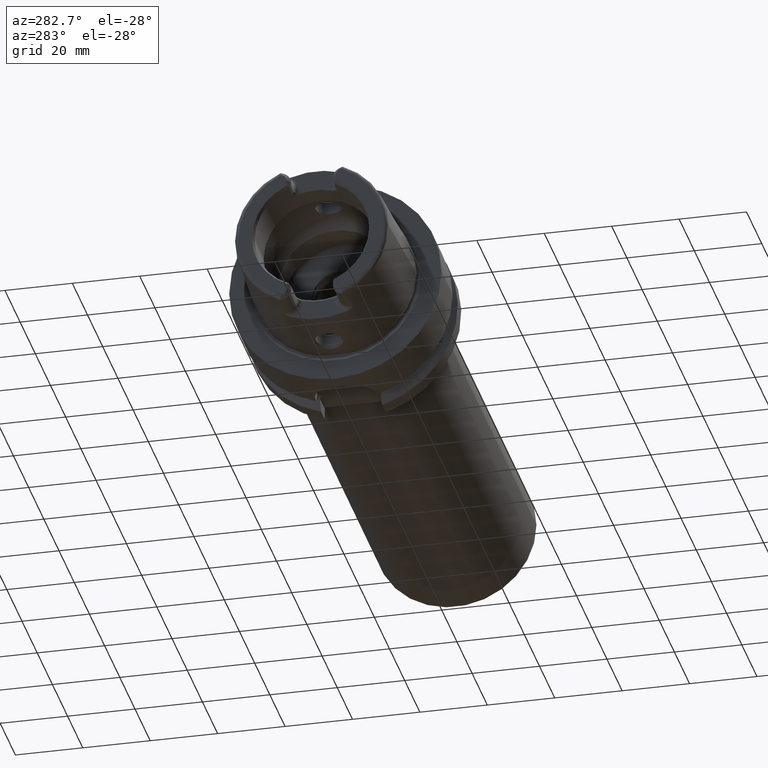
[diagram: clean part render]
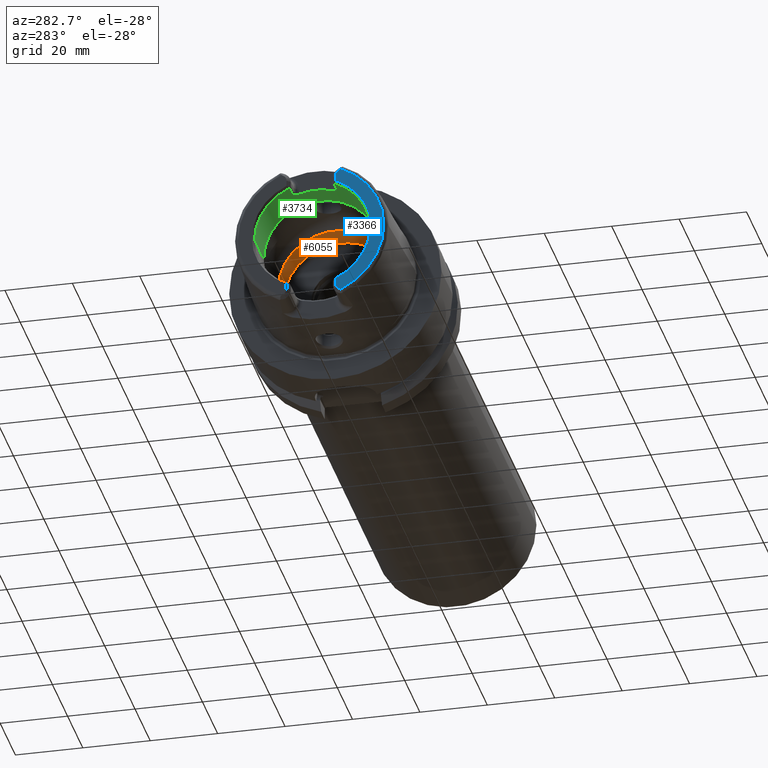
[diagram: same view with three faces highlighted in distinct colors, each labeled with its STEP entity id]
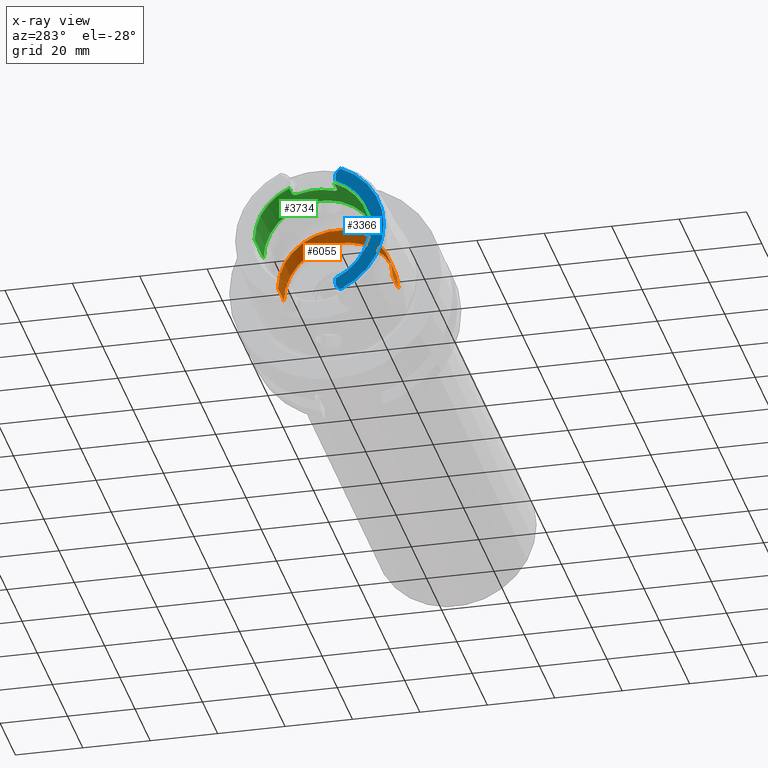
[diagram: x-ray of the same camera — body ghosted, the three highlighted faces saturated]
A machine part, auxiliary view with three faces highlighted in distinct colors.
The next image is the same camera in x-ray (body ghosted, the three faces saturated) — at least one of them is partly hidden behind the body in this view.
Their STEP definitions:

[orange] entity #6055 — the highlighted cylindrical surface (partial cylindrical patch) has radius 17 mm, axis along (1, 0, 0).
#2289=CARTESIAN_POINT('',(-1.E-1,0.E0,0.E0));
#2290=DIRECTION('',(1.E0,0.E0,0.E0));
#2291=DIRECTION('',(0.E0,1.E0,0.E0));
#2292=AXIS2_PLACEMENT_3D('',#2289,#2290,#2291);
#2437=DIRECTION('',(-1.E0,0.E0,0.E0));
#2438=VECTOR('',#2437,7.770843802411E0);
#2439=CARTESIAN_POINT('',(7.670843802411E0,1.7E1,0.E0));
#2440=LINE('',#2439,#2438);
#2446=DIRECTION('',(-1.E0,0.E0,0.E0));
#2447=VECTOR('',#2446,7.770843802411E0);
#2448=CARTESIAN_POINT('',(7.670843802411E0,-1.7E1,0.E0));
#2449=LINE('',#2448,#2447);
#2450=CARTESIAN_POINT('',(7.670843802411E0,0.E0,0.E0));
#2451=DIRECTION('',(1.E0,0.E0,0.E0));
#2452=DIRECTION('',(0.E0,1.E0,0.E0));
#2453=AXIS2_PLACEMENT_3D('',#2450,#2451,#2452);
#2684=CARTESIAN_POINT('',(7.670843802411E0,1.7E1,0.E0));
#2686=VERTEX_POINT('',#2684);
#2688=CARTESIAN_POINT('',(7.670843802411E0,-1.7E1,0.E0));
#2690=VERTEX_POINT('',#2688);
#2691=CARTESIAN_POINT('',(-1.E-1,1.7E1,0.E0));
#2692=VERTEX_POINT('',#2691);
#2703=CARTESIAN_POINT('',(-1.E-1,-1.7E1,0.E0));
#2704=VERTEX_POINT('',#2703);
#6043=CARTESIAN_POINT('',(-3.41E1,0.E0,0.E0));
#6044=DIRECTION('',(1.E0,0.E0,0.E0));
#6045=DIRECTION('',(0.E0,-1.E0,0.E0));
#6046=AXIS2_PLACEMENT_3D('',#6043,#6044,#6045);
#6047=CYLINDRICAL_SURFACE('',#6046,1.7E1);
#6048=ORIENTED_EDGE('',*,*,#6033,.T.);
#6049=ORIENTED_EDGE('',*,*,#5967,.T.);
#6050=ORIENTED_EDGE('',*,*,#6037,.F.);
#6052=ORIENTED_EDGE('',*,*,#6051,.F.);
#6053=EDGE_LOOP('',(#6048,#6049,#6050,#6052));
#6054=FACE_OUTER_BOUND('',#6053,.F.);
#6055=ADVANCED_FACE('',(#6054),#6047,.F.);
#2293=CIRCLE('',#2292,1.7E1);
#2454=CIRCLE('',#2453,1.7E1);
#5967=EDGE_CURVE('',#2692,#2704,#2293,.T.);
#6033=EDGE_CURVE('',#2686,#2692,#2440,.T.);
#6037=EDGE_CURVE('',#2690,#2704,#2449,.T.);
#6051=EDGE_CURVE('',#2686,#2690,#2454,.T.);

[blue] entity #3366 — the highlighted planar face has unit normal (1, 0, 0).
#231=CARTESIAN_POINT('',(-3.2E1,0.E0,0.E0));
#232=DIRECTION('',(-1.E0,0.E0,0.E0));
#233=DIRECTION('',(0.E0,-4.056746540583E-1,-9.140175463604E-1));
#234=AXIS2_PLACEMENT_3D('',#231,#232,#233);
#315=DIRECTION('',(0.E0,0.E0,-1.E0));
#316=VECTOR('',#315,1.666552168805E0);
#317=CARTESIAN_POINT('',(-3.2E1,-7.27E0,-1.600344783120E1));
#318=LINE('',#317,#316);
#319=DIRECTION('',(0.E0,0.E0,1.E0));
#320=VECTOR('',#319,1.666552168805E0);
#321=CARTESIAN_POINT('',(-3.2E1,-7.27E0,1.600344783120E1));
#322=LINE('',#321,#320);
#323=CARTESIAN_POINT('',(-3.2E1,-9.27E0,1.767E1));
#324=DIRECTION('',(1.E0,0.E0,0.E0));
#325=DIRECTION('',(0.E0,1.E0,1.065814103640E-14));
#326=AXIS2_PLACEMENT_3D('',#323,#324,#325);
#328=DIRECTION('',(0.E0,8.373245684230E-1,-5.467061067112E-1));
#329=VECTOR('',#328,6.882400885957E-1);
#330=CARTESIAN_POINT('',(-3.2E1,-8.752868121732E0,1.972091419616E1));
#331=LINE('',#330,#329);
#332=DIRECTION('',(0.E0,8.373245684230E-1,5.467061067112E-1));
#333=VECTOR('',#332,6.882400885957E-1);
#334=CARTESIAN_POINT('',(-3.2E1,-8.752868121732E0,-1.972091419616E1));
#335=LINE('',#334,#333);
#336=CARTESIAN_POINT('',(-3.2E1,-9.27E0,-1.767E1));
#337=DIRECTION('',(-1.E0,0.E0,0.E0));
#338=DIRECTION('',(0.E0,1.E0,0.E0));
#339=AXIS2_PLACEMENT_3D('',#336,#337,#338);
#410=CARTESIAN_POINT('',(-3.2E1,0.E0,0.E0));
#411=DIRECTION('',(1.E0,0.E0,0.E0));
#412=DIRECTION('',(0.E0,-4.136004510727E-1,9.104584926686E-1));
#413=AXIS2_PLACEMENT_3D('',#410,#411,#412);
#2758=CARTESIAN_POINT('',(-3.2E1,-7.27E0,1.600344783120E1));
#2759=CARTESIAN_POINT('',(-3.2E1,-7.27E0,1.767E1));
#2760=VERTEX_POINT('',#2758);
#2761=VERTEX_POINT('',#2759);
#2762=CARTESIAN_POINT('',(-3.2E1,-8.176587786578E0,1.934464913685E1));
#2763=VERTEX_POINT('',#2762);
#2764=CARTESIAN_POINT('',(-3.2E1,-8.752868121732E0,1.972091419616E1));
#2765=VERTEX_POINT('',#2764);
#2855=CARTESIAN_POINT('',(-3.2E1,-7.27E0,-1.600344783120E1));
#2856=CARTESIAN_POINT('',(-3.2E1,-7.27E0,-1.767E1));
#2857=VERTEX_POINT('',#2855);
#2858=VERTEX_POINT('',#2856);
#2859=CARTESIAN_POINT('',(-3.2E1,-8.176587786578E0,-1.934464913685E1));
#2860=VERTEX_POINT('',#2859);
#2861=CARTESIAN_POINT('',(-3.2E1,-8.752868121732E0,-1.972091419616E1));
#2862=VERTEX_POINT('',#2861);
#3344=CARTESIAN_POINT('',(-3.2E1,0.E0,0.E0));
#3345=DIRECTION('',(1.E0,0.E0,0.E0));
#3346=DIRECTION('',(0.E0,-1.E0,0.E0));
#3347=AXIS2_PLACEMENT_3D('',#3344,#3345,#3346);
#3348=PLANE('',#3347);
#3350=ORIENTED_EDGE('',*,*,#3349,.F.);
#3352=ORIENTED_EDGE('',*,*,#3351,.F.);
#3354=ORIENTED_EDGE('',*,*,#3353,.T.);
#3356=ORIENTED_EDGE('',*,*,#3355,.T.);
#3358=ORIENTED_EDGE('',*,*,#3357,.F.);
#3359=ORIENTED_EDGE('',*,*,#3291,.F.);
#3361=ORIENTED_EDGE('',*,*,#3360,.T.);
#3363=ORIENTED_EDGE('',*,*,#3362,.F.);
#3364=EDGE_LOOP('',(#3350,#3352,#3354,#3356,#3358,#3359,#3361,#3363));
#3365=FACE_OUTER_BOUND('',#3364,.F.);
#3366=ADVANCED_FACE('',(#3365),#3348,.F.);
#235=CIRCLE('',#234,2.157607835286E1);
#327=CIRCLE('',#326,2.E0);
#340=CIRCLE('',#339,2.E0);
#414=CIRCLE('',#413,1.757735026919E1);
#3291=EDGE_CURVE('',#2862,#2765,#235,.T.);
#3349=EDGE_CURVE('',#2857,#2858,#318,.T.);
#3351=EDGE_CURVE('',#2760,#2857,#414,.T.);
#3353=EDGE_CURVE('',#2760,#2761,#322,.T.);
#3355=EDGE_CURVE('',#2761,#2763,#327,.T.);
#3357=EDGE_CURVE('',#2765,#2763,#331,.T.);
#3360=EDGE_CURVE('',#2862,#2860,#335,.T.);
#3362=EDGE_CURVE('',#2858,#2860,#340,.T.);

[green] entity #3734 — the highlighted cylindrical surface (partial cylindrical patch) has radius 17 mm, axis along (1, 0, 0).
#362=CARTESIAN_POINT('',(-3.1E1,0.E0,0.E0));
#363=DIRECTION('',(1.E0,0.E0,0.E0));
#364=DIRECTION('',(0.E0,1.E0,0.E0));
#365=AXIS2_PLACEMENT_3D('',#362,#363,#364);
#394=CARTESIAN_POINT('',(-3.1E1,0.E0,0.E0));
#395=DIRECTION('',(1.E0,0.E0,0.E0));
#396=DIRECTION('',(0.E0,-3.910839598454E-1,9.203550056102E-1));
#397=AXIS2_PLACEMENT_3D('',#394,#395,#396);
#559=DIRECTION('',(1.E0,0.E0,0.E0));
#560=VECTOR('',#559,3.5E0);
#561=CARTESIAN_POINT('',(-3.1E1,6.648427317371E0,1.564603509537E1));
#562=LINE('',#561,#560);
#563=CARTESIAN_POINT('',(-2.571132486541E1,4.77E0,1.631708000838E1));
#564=CARTESIAN_POINT('',(-2.570911463045E1,4.851899929325E0,1.629313806150E1));
#565=CARTESIAN_POINT('',(-2.571539985496E1,5.014300274441E0,1.624433189365E1));
#566=CARTESIAN_POINT('',(-2.575723226820E1,5.255574737127E0,1.616786516493E1));
#567=CARTESIAN_POINT('',(-2.583019759937E1,5.488813832187E0,1.609012650164E1));
#568=CARTESIAN_POINT('',(-2.593222755914E1,5.709311810621E0,1.601314455534E1));
#569=CARTESIAN_POINT('',(-2.606208908479E1,5.913640570765E0,1.593873381343E1));
#570=CARTESIAN_POINT('',(-2.621579663552E1,6.097621457296E0,1.586916363348E1));
#571=CARTESIAN_POINT('',(-2.639004084082E1,6.257927374534E0,1.580654307494E1));
#572=CARTESIAN_POINT('',(-2.658287946713E1,6.394281114327E0,1.575179653388E1));
#573=CARTESIAN_POINT('',(-2.679414325254E1,6.504885265694E0,1.570637036291E1));
#574=CARTESIAN_POINT('',(-2.702072491693E1,6.586740689310E0,1.567215753589E1));
#575=CARTESIAN_POINT('',(-2.725841410654E1,6.637201205541E0,1.565081274977E1));
#576=CARTESIAN_POINT('',(-2.741884128981E1,6.648427317371E0,1.564603509537E1));
#577=CARTESIAN_POINT('',(-2.75E1,6.648427317371E0,1.564603509537E1));
#579=CARTESIAN_POINT('',(-2.571132486541E1,-4.77E0,1.631708000838E1));
#580=CARTESIAN_POINT('',(-2.571132486541E1,-4.151241293882E0,1.649796280277E1));
#581=CARTESIAN_POINT('',(-2.571132889067E1,-2.893125957956E0,1.678926713017E1));
#582=CARTESIAN_POINT('',(-2.571132738120E1,-9.685489423330E-1,
1.700915920873E1));
#583=CARTESIAN_POINT('',(-2.571132738120E1,9.685489423332E-1,1.700915920873E1));
#584=CARTESIAN_POINT('',(-2.571132889067E1,2.893125957955E0,1.678926713017E1));
#585=CARTESIAN_POINT('',(-2.571132486541E1,4.151241293884E0,1.649796280277E1));
#586=CARTESIAN_POINT('',(-2.571132486541E1,4.77E0,1.631708000838E1));
#588=CARTESIAN_POINT('',(-2.75E1,-6.648427317371E0,1.564603509537E1));
#589=CARTESIAN_POINT('',(-2.741886739757E1,-6.648427317371E0,1.564603509537E1));
#590=CARTESIAN_POINT('',(-2.725846026145E1,-6.637216591931E0,1.565080624648E1));
#591=CARTESIAN_POINT('',(-2.702047669465E1,-6.586680175792E0,1.567218311946E1));
#592=CARTESIAN_POINT('',(-2.679396033382E1,-6.504789416100E0,1.570640995358E1));
#593=CARTESIAN_POINT('',(-2.658322850975E1,-6.394447887183E0,1.575172726773E1));
#594=CARTESIAN_POINT('',(-2.639118887217E1,-6.258799446744E0,1.580619508840E1));
#595=CARTESIAN_POINT('',(-2.621738949273E1,-6.099242016698E0,1.586853752436E1));
#596=CARTESIAN_POINT('',(-2.606384631874E1,-5.916012648986E0,1.593785105703E1));
#597=CARTESIAN_POINT('',(-2.593366664869E1,-5.711955003317E0,1.601220141386E1));
#598=CARTESIAN_POINT('',(-2.583107108488E1,-5.491206341112E0,1.608931480424E1));
#599=CARTESIAN_POINT('',(-2.575746962839E1,-5.256749499660E0,1.616748882623E1));
#600=CARTESIAN_POINT('',(-2.571543732099E1,-5.014873021211E0,1.624415783103E1));
#601=CARTESIAN_POINT('',(-2.570911008721E1,-4.852068278437E0,1.629308884771E1));
#602=CARTESIAN_POINT('',(-2.571132486541E1,-4.77E0,1.631708000838E1));
#604=DIRECTION('',(1.E0,0.E0,0.E0));
#605=VECTOR('',#604,3.5E0);
#606=CARTESIAN_POINT('',(-3.1E1,-6.648427317371E0,1.564603509537E1));
#607=LINE('',#606,#605);
#608=CARTESIAN_POINT('',(-1.899602540378E1,0.E0,0.E0));
#609=DIRECTION('',(1.E0,0.E0,0.E0));
#610=DIRECTION('',(0.E0,1.E0,0.E0));
#611=AXIS2_PLACEMENT_3D('',#608,#609,#610);
#666=DIRECTION('',(-1.E0,0.E0,0.E0));
#667=VECTOR('',#666,1.200397459622E1);
#668=CARTESIAN_POINT('',(-1.899602540378E1,1.7E1,0.E0));
#669=LINE('',#668,#667);
#675=DIRECTION('',(-1.E0,0.E0,0.E0));
#676=VECTOR('',#675,1.200397459622E1);
#677=CARTESIAN_POINT('',(-1.899602540378E1,-1.7E1,0.E0));
#678=LINE('',#677,#676);
#2699=CARTESIAN_POINT('',(-1.899602540378E1,1.7E1,0.E0));
#2700=VERTEX_POINT('',#2699);
#2701=CARTESIAN_POINT('',(-3.1E1,1.7E1,0.E0));
#2702=VERTEX_POINT('',#2701);
#2711=CARTESIAN_POINT('',(-1.899602540378E1,-1.7E1,0.E0));
#2712=VERTEX_POINT('',#2711);
#2713=CARTESIAN_POINT('',(-3.1E1,-1.7E1,0.E0));
#2714=VERTEX_POINT('',#2713);
#2780=CARTESIAN_POINT('',(-2.75E1,6.648427317371E0,1.564603509537E1));
#2781=VERTEX_POINT('',#2780);
#2782=CARTESIAN_POINT('',(-2.571132486541E1,4.77E0,1.631708000838E1));
#2783=VERTEX_POINT('',#2782);
#2784=CARTESIAN_POINT('',(-2.75E1,-6.648427317371E0,1.564603509537E1));
#2785=VERTEX_POINT('',#2784);
#2786=CARTESIAN_POINT('',(-2.571132486541E1,-4.77E0,1.631708000838E1));
#2787=VERTEX_POINT('',#2786);
#2792=CARTESIAN_POINT('',(-3.1E1,6.648427317371E0,1.564603509537E1));
#2793=VERTEX_POINT('',#2792);
#2794=CARTESIAN_POINT('',(-3.1E1,-6.648427317371E0,1.564603509537E1));
#2795=VERTEX_POINT('',#2794);
#3713=CARTESIAN_POINT('',(-3.41E1,0.E0,0.E0));
#3714=DIRECTION('',(1.E0,0.E0,0.E0));
#3715=DIRECTION('',(0.E0,-1.E0,0.E0));
#3716=AXIS2_PLACEMENT_3D('',#3713,#3714,#3715);
#3717=CYLINDRICAL_SURFACE('',#3716,1.7E1);
#3718=ORIENTED_EDGE('',*,*,#3450,.T.);
#3720=ORIENTED_EDGE('',*,*,#3719,.F.);
#3721=ORIENTED_EDGE('',*,*,#3598,.F.);
#3722=ORIENTED_EDGE('',*,*,#3653,.F.);
#3723=ORIENTED_EDGE('',*,*,#3668,.F.);
#3724=ORIENTED_EDGE('',*,*,#3415,.T.);
#3726=ORIENTED_EDGE('',*,*,#3725,.F.);
#3728=ORIENTED_EDGE('',*,*,#3727,.F.);
#3730=ORIENTED_EDGE('',*,*,#3729,.T.);
#3731=ORIENTED_EDGE('',*,*,#3395,.T.);
#3732=EDGE_LOOP('',(#3718,#3720,#3721,#3722,#3723,#3724,#3726,#3728,#3730,
#3731));
#3733=FACE_OUTER_BOUND('',#3732,.F.);
#3734=ADVANCED_FACE('',(#3733),#3717,.F.);
#366=CIRCLE('',#365,1.7E1);
#398=CIRCLE('',#397,1.7E1);
#578=B_SPLINE_CURVE_WITH_KNOTS('',3,(#563,#564,#565,#566,#567,#568,#569,#570,
#571,#572,#573,#574,#575,#576,#577),.UNSPECIFIED.,.F.,.F.,(4,1,1,1,1,1,1,1,1,1,
1,1,4),(0.E0,8.333333333333E-2,1.666666666667E-1,2.5E-1,3.333333333333E-1,
4.166666666667E-1,5.E-1,5.833333333333E-1,6.666666666667E-1,7.5E-1,
8.333333333333E-1,9.166666666667E-1,1.E0),.UNSPECIFIED.);
#587=B_SPLINE_CURVE_WITH_KNOTS('',3,(#579,#580,#581,#582,#583,#584,#585,#586),
.UNSPECIFIED.,.F.,.F.,(4,1,1,1,1,4),(0.E0,2.E-1,4.E-1,6.E-1,8.E-1,1.E0),
.UNSPECIFIED.);
#603=B_SPLINE_CURVE_WITH_KNOTS('',3,(#588,#589,#590,#591,#592,#593,#594,#595,
#596,#597,#598,#599,#600,#601,#602),.UNSPECIFIED.,.F.,.F.,(4,1,1,1,1,1,1,1,1,1,
1,1,4),(0.E0,8.333333333333E-2,1.666666666667E-1,2.5E-1,3.333333333333E-1,
4.166666666667E-1,5.E-1,5.833333333333E-1,6.666666666667E-1,7.5E-1,
8.333333333333E-1,9.166666666667E-1,1.E0),.UNSPECIFIED.);
#612=CIRCLE('',#611,1.7E1);
#3395=EDGE_CURVE('',#2702,#2793,#366,.T.);
#3415=EDGE_CURVE('',#2795,#2714,#398,.T.);
#3450=EDGE_CURVE('',#2793,#2781,#562,.T.);
#3598=EDGE_CURVE('',#2787,#2783,#587,.T.);
#3653=EDGE_CURVE('',#2785,#2787,#603,.T.);
#3668=EDGE_CURVE('',#2795,#2785,#607,.T.);
#3719=EDGE_CURVE('',#2783,#2781,#578,.T.);
#3725=EDGE_CURVE('',#2712,#2714,#678,.T.);
#3727=EDGE_CURVE('',#2700,#2712,#612,.T.);
#3729=EDGE_CURVE('',#2700,#2702,#669,.T.);